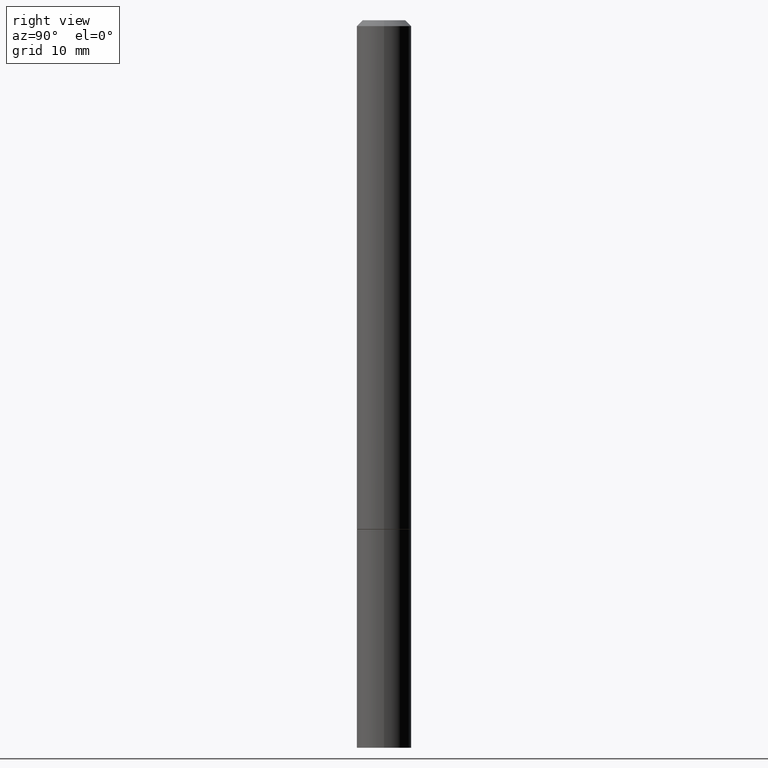
[diagram: clean part render]
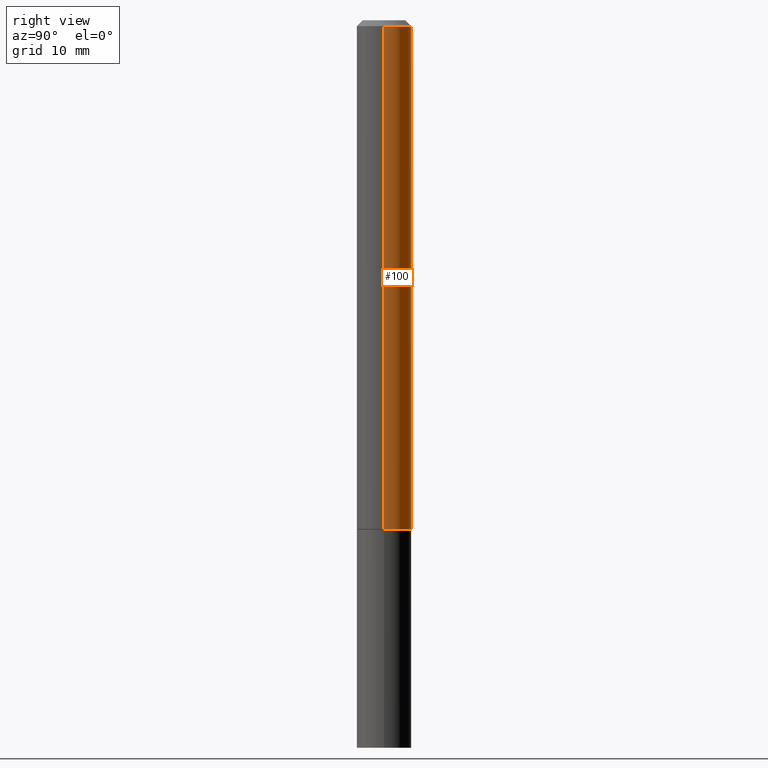
[diagram: same view with one face highlighted and labeled with its STEP entity id]
A machine part, right view. The second image highlights one B-rep face of the part: STEP entity #100.
In plain terms, the highlighted cylindrical surface (edge-blend (fillet) strip) has radius 2.3812 mm, axis along (-0, 0, 1).
Its self-contained STEP definition (entity closure, byte-faithful):
#26 = ORIENTED_EDGE ( 'NONE', *, *, #222, .T. ) ;
#32 = VERTEX_POINT ( 'NONE', #247 ) ;
#46 = DIRECTION ( 'NONE',  ( -2.445468806185136877E-29, 3.491481338843145188E-15, 1.000000000000000000 ) ) ;
#59 = CARTESIAN_POINT ( 'NONE',  ( -0.09374999999999979183, 5.848231242562231212E-16, -0.02000000000000000736 ) ) ;
#60 = CIRCLE ( 'NONE', #361, 0.09374999999999979183 ) ;
#69 = CARTESIAN_POINT ( 'NONE',  ( 0.09374999999999979183, -7.130013140679426072E-16, -0.02000000000000000736 ) ) ;
#70 = CIRCLE ( 'NONE', #253, 0.09375000000000001388 ) ;
#71 = EDGE_LOOP ( 'NONE', ( #26, #359, #169, #215 ) ) ;
#74 = CARTESIAN_POINT ( 'NONE',  ( -0.09374999999999988898, 6.661338147750931354E-16, -4.611501647113968390E-30 ) ) ;
#91 = CARTESIAN_POINT ( 'NONE',  ( 4.890937612370274910E-31, -6.982962677686295307E-17, -0.02000000000000000736 ) ) ;
#97 = EDGE_CURVE ( 'NONE', #32, #193, #180, .T. ) ;
#100 = ADVANCED_FACE ( 'NONE', ( #325 ), #294, .T. ) ;
#101 = VERTEX_POINT ( 'NONE', #156 ) ;
#112 = DIRECTION ( 'NONE',  ( 1.000000000000000000, -6.982962677686266711E-15, 0.000000000000000000 ) ) ;
#118 = DIRECTION ( 'NONE',  ( 1.000000000000000000, -6.982962677686261189E-15, 0.000000000000000000 ) ) ;
#126 = AXIS2_PLACEMENT_3D ( 'NONE', #134, #295, #269 ) ;
#134 = CARTESIAN_POINT ( 'NONE',  ( 0.000000000000000000, 0.000000000000000000, 0.000000000000000000 ) ) ;
#148 = CARTESIAN_POINT ( 'NONE',  ( 0.09374999999999988898, -6.546527510330866166E-16, 4.571415727308684201E-30 ) ) ;
#156 = CARTESIAN_POINT ( 'NONE',  ( 0.09375000000000001388, -6.761253612669749168E-15, -1.749000000000000110 ) ) ;
#159 = EDGE_CURVE ( 'NONE', #101, #366, #343, .T. ) ;
#169 = ORIENTED_EDGE ( 'NONE', *, *, #188, .F. ) ;
#180 = LINE ( 'NONE', #74, #331 ) ;
#188 = EDGE_CURVE ( 'NONE', #366, #193, #60, .T. ) ;
#193 = VERTEX_POINT ( 'NONE', #59 ) ;
#215 = ORIENTED_EDGE ( 'NONE', *, *, #159, .F. ) ;
#222 = EDGE_CURVE ( 'NONE', #101, #32, #70, .T. ) ;
#236 = VECTOR ( 'NONE', #345, 39.37007874015748143 ) ;
#247 = CARTESIAN_POINT ( 'NONE',  ( -0.09375000000000001388, -2.422081429431664218E-15, -1.749000000000000110 ) ) ;
#253 = AXIS2_PLACEMENT_3D ( 'NONE', #287, #307, #118 ) ;
#269 = DIRECTION ( 'NONE',  ( 1.000000000000000000, -6.982962677686265133E-15, 4.876176775795935793E-29 ) ) ;
#287 = CARTESIAN_POINT ( 'NONE',  ( 4.277124942017804562E-29, -6.106600861636661664E-15, -1.749000000000000110 ) ) ;
#294 = CYLINDRICAL_SURFACE ( 'NONE', #126, 0.09374999999999988898 ) ;
#295 = DIRECTION ( 'NONE',  ( -2.445468806185136597E-29, 3.491481338843145583E-15, 1.000000000000000000 ) ) ;
#307 = DIRECTION ( 'NONE',  ( -2.445468806185136597E-29, 3.491481338843145583E-15, 1.000000000000000000 ) ) ;
#325 = FACE_OUTER_BOUND ( 'NONE', #71, .T. ) ;
#331 = VECTOR ( 'NONE', #46, 39.37007874015748143 ) ;
#343 = LINE ( 'NONE', #148, #236 ) ;
#344 = DIRECTION ( 'NONE',  ( -2.445468806185136597E-29, 3.491481338843145583E-15, 1.000000000000000000 ) ) ;
#345 = DIRECTION ( 'NONE',  ( -2.445468806185136877E-29, 3.491481338843145188E-15, 1.000000000000000000 ) ) ;
#359 = ORIENTED_EDGE ( 'NONE', *, *, #97, .T. ) ;
#361 = AXIS2_PLACEMENT_3D ( 'NONE', #91, #344, #112 ) ;
#366 = VERTEX_POINT ( 'NONE', #69 ) ;